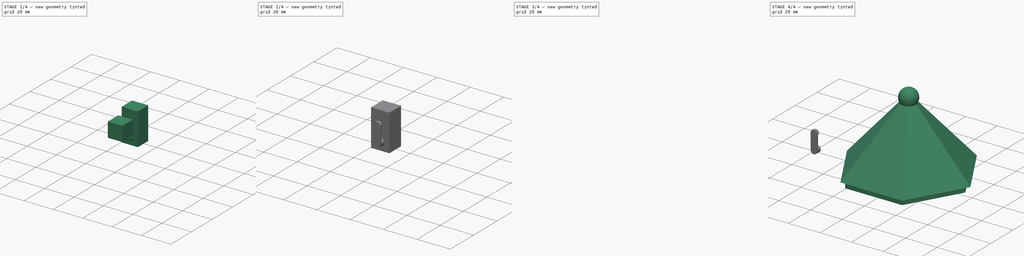
[diagram: build sequence overview — one tinted view per stage of 4, left to right]
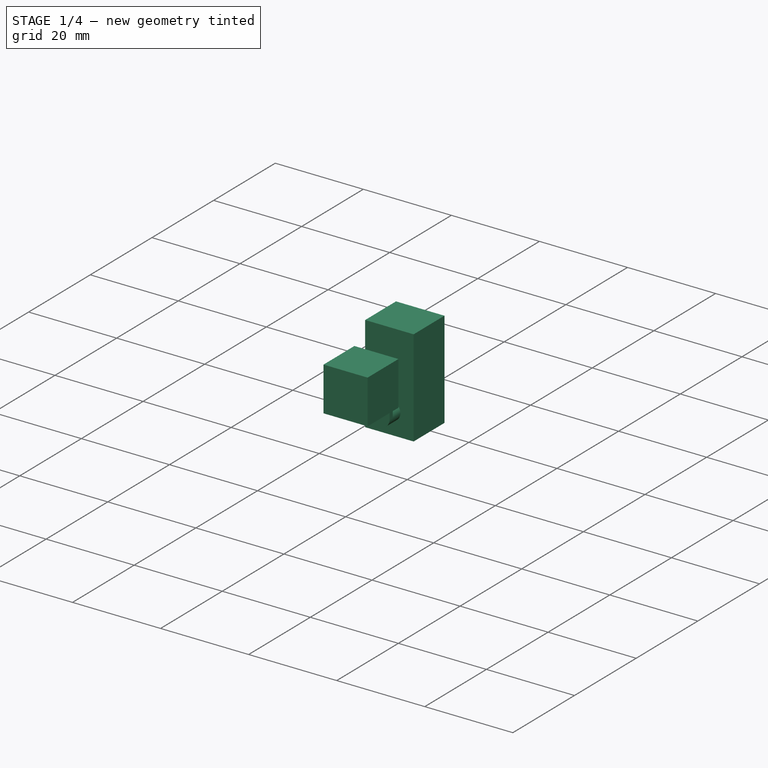
[diagram: stage 1 of 4 — iso view after this stage's code; geometry added in this stage tinted green]
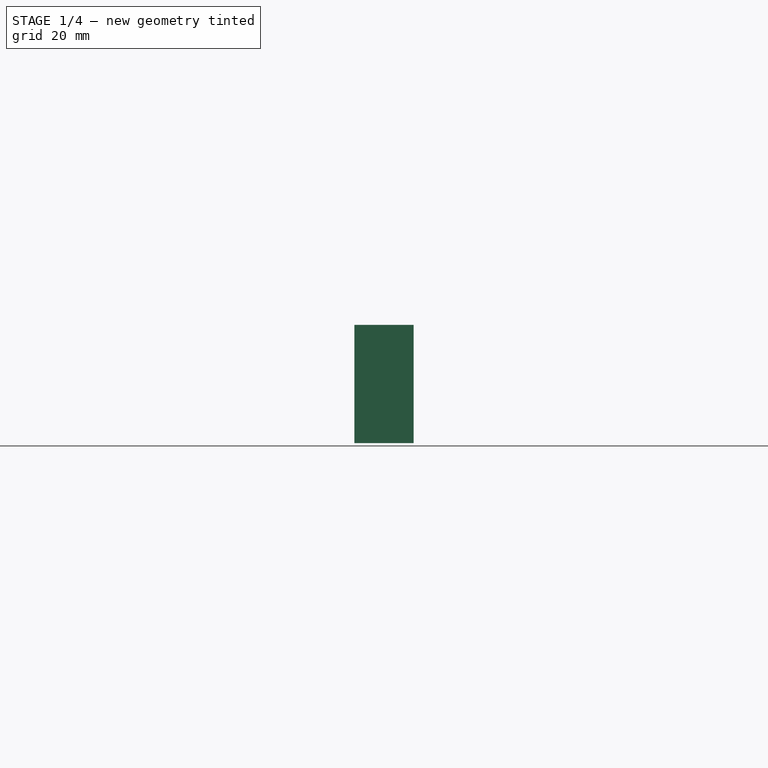
[diagram: stage 1 of 4 — front view after this stage's code; geometry added in this stage tinted green]
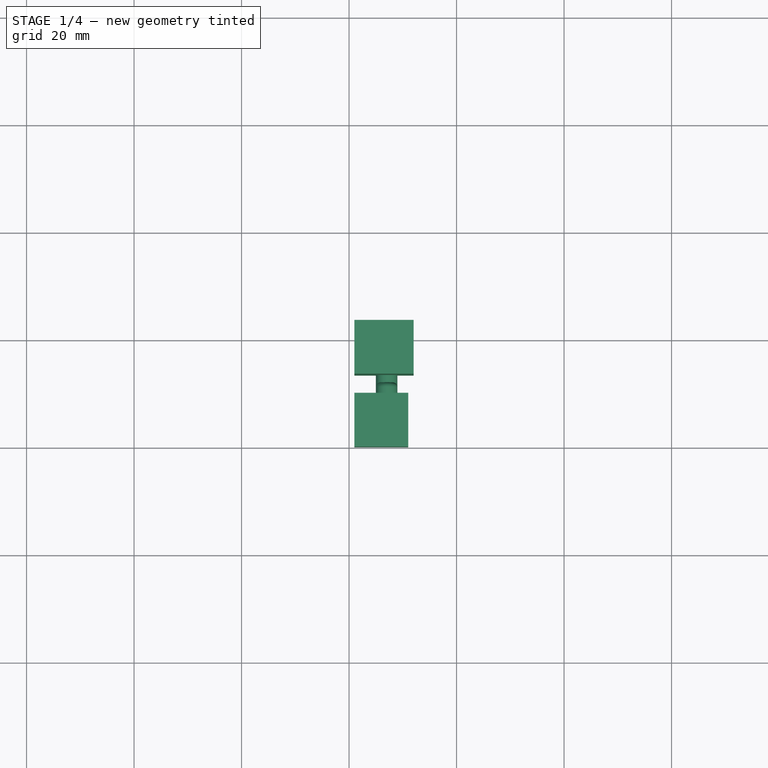
[diagram: stage 1 of 4 — top view after this stage's code; geometry added in this stage tinted green]
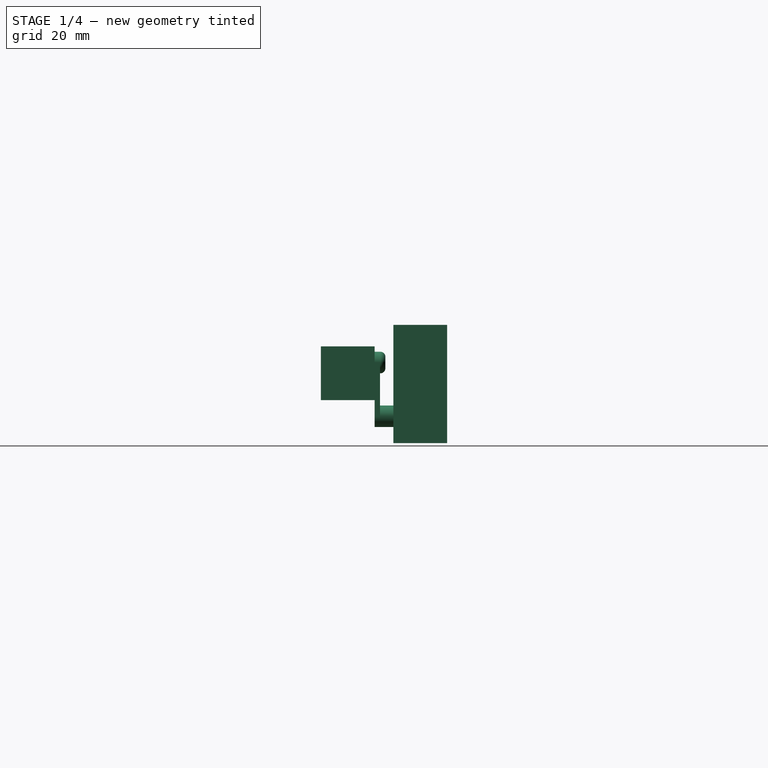
[diagram: stage 1 of 4 — right view after this stage's code; geometry added in this stage tinted green]
FCSTD DOCUMENT  (FreeCAD 0.16R6704 (Git))
Label: techo reparado exagono soportes
License: All rights reserved
LicenseURL: http://en.wikipedia.org/wiki/All_rights_reserved
objects: Part::Feature×18, Part::MultiFuse×3, Part::RegularPolygon×2, Part::Sphere×2, Part::Box×2, Part::Cut×2, Part::Loft×1, Part::Cylinder×1, Sketcher::SketchObject×1, PartDesign::Pad×1, Part::Thickness×1, PartDesign::Fillet×1
note: 36 computed .brp shape members not serialized (recipe doc carries the construction recipe); baked Part::Feature solids carry a one-line shape summary decoded from their .brp

FEATURE [Part::Box] Box001  label="Cubo001"
  Height = 10
  Length = 10
  Placement = pos=(-59,-20,3) rot=(0,0,1;0rad)
  Width = 10
FEATURE [PartDesign::Fillet] Fillet
  Base = -> Fusion002001 [Edge16]
  Radius = 0.9
FEATURE [Part::Box] Box  label="Cubo"
  Height = 22
  Length = 11
  Placement = pos=(-59,-6.5,-5) rot=(0,0,1;0rad)
  Width = 10
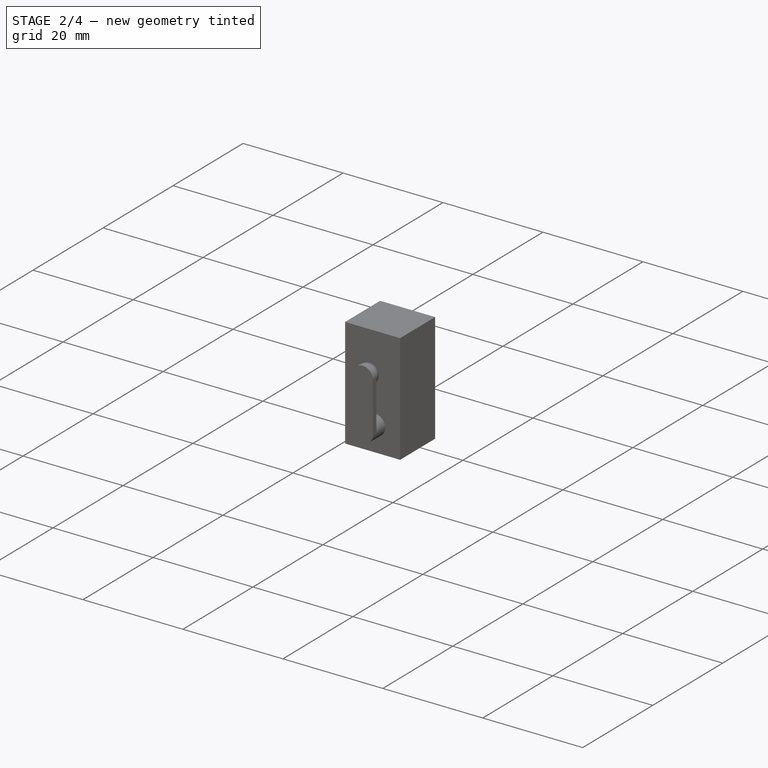
[diagram: stage 2 of 4 — iso view after this stage's code; geometry added in this stage tinted green]
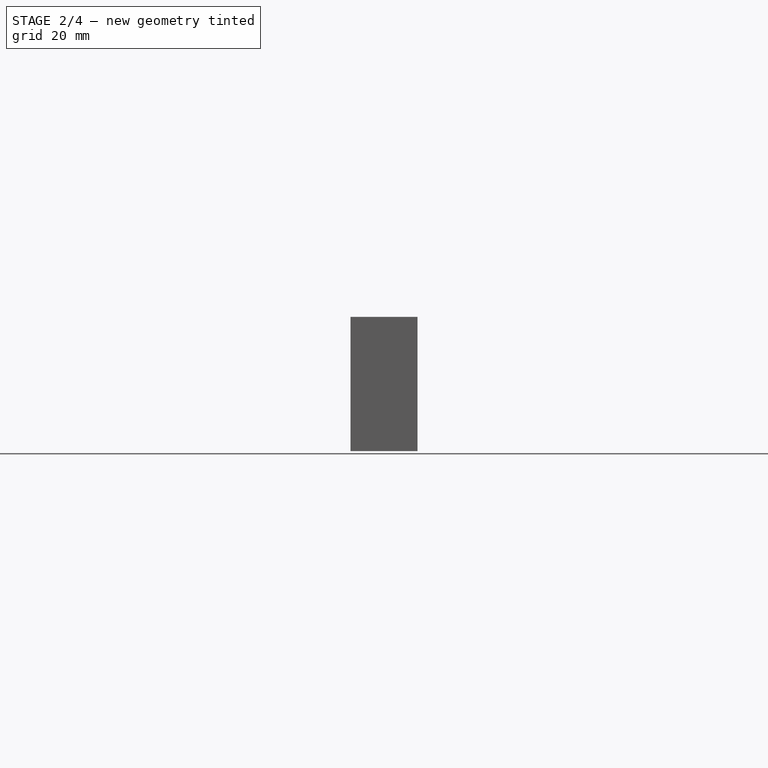
[diagram: stage 2 of 4 — front view after this stage's code; geometry added in this stage tinted green]
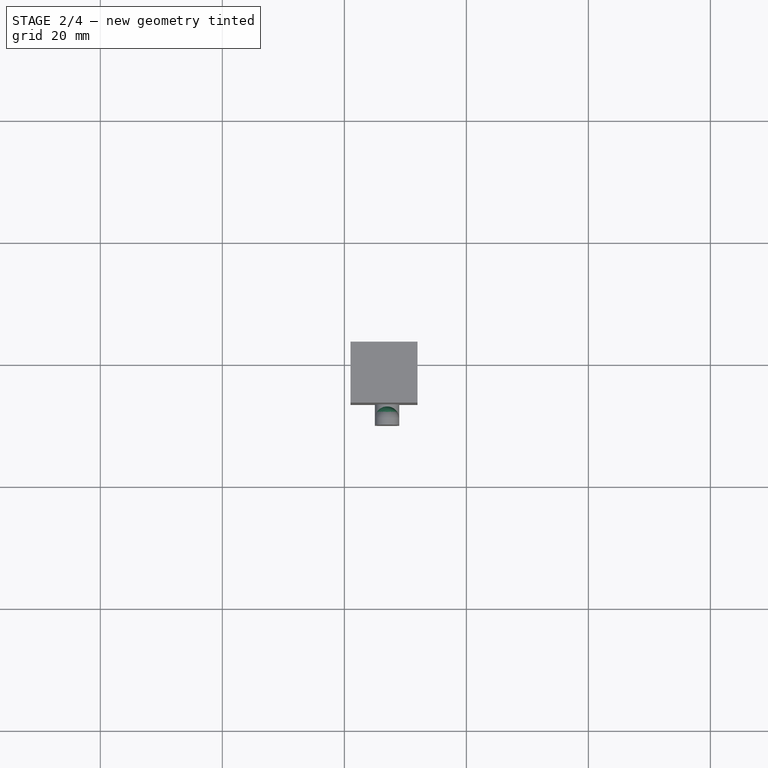
[diagram: stage 2 of 4 — top view after this stage's code; geometry added in this stage tinted green]
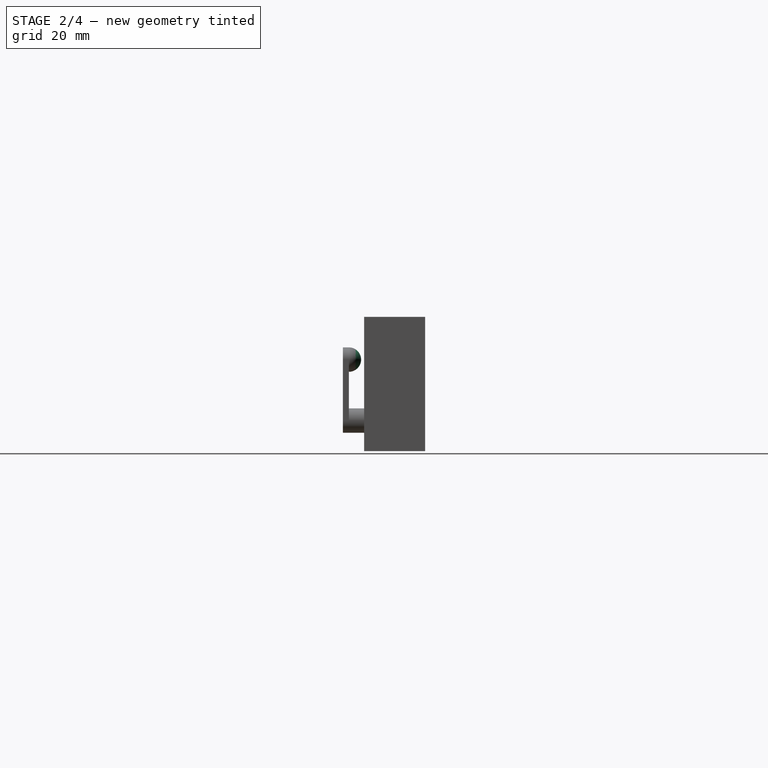
[diagram: stage 2 of 4 — right view after this stage's code; geometry added in this stage tinted green]
FEATURE [Part::Feature] Fusion002001  label="Fusion003"
  shape: bbox 4 x 4 x 14 mm, 8 faces (baked)
FEATURE [Part::Sphere] Sphere001  label="Esfera001"
  Angle1 = -90
  Angle2 = 90
  Angle3 = 360
  Placement = pos=(-53,-9,10) rot=(0,0,1;0rad)
  Radius = 2
FEATURE [Part::Cut] Cut001
  Base = -> Sphere001
  Tool = -> Box001
FEATURE [Part::MultiFuse] Fusion002002
  Shapes = -> [Cut001,Fillet]
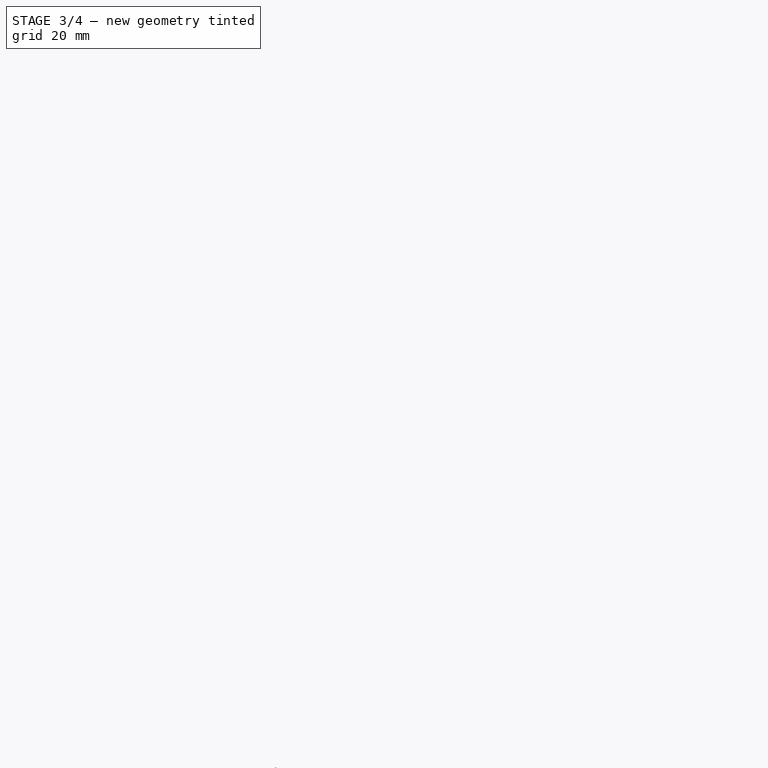
[diagram: stage 3 of 4 — iso view after this stage's code; geometry added in this stage tinted green]
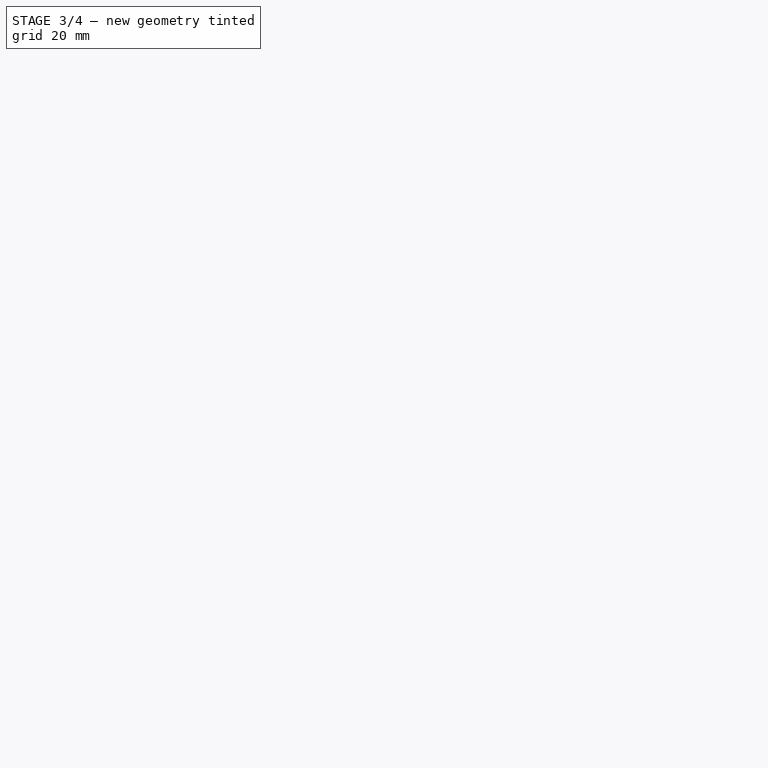
[diagram: stage 3 of 4 — front view after this stage's code; geometry added in this stage tinted green]
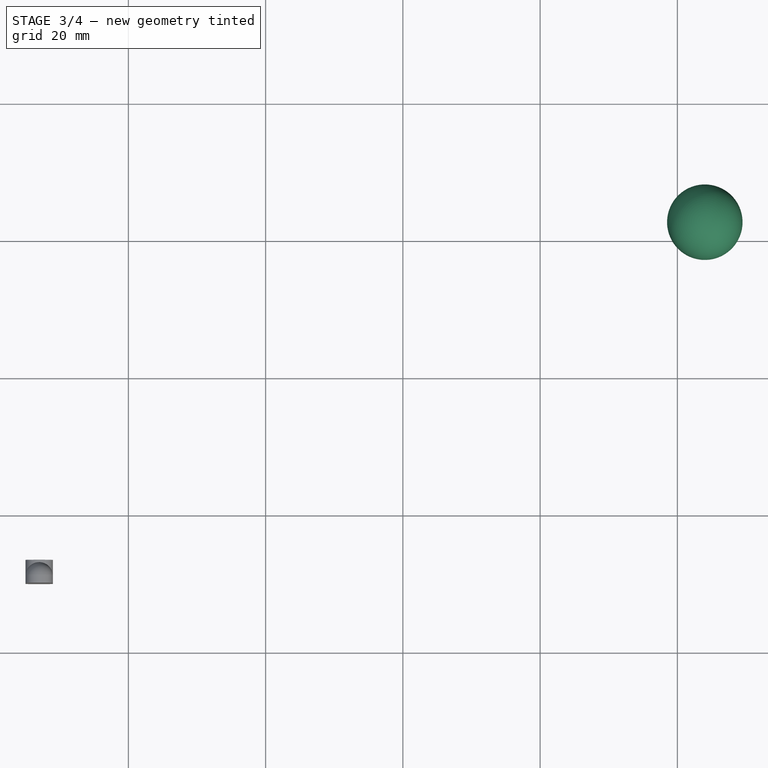
[diagram: stage 3 of 4 — top view after this stage's code; geometry added in this stage tinted green]
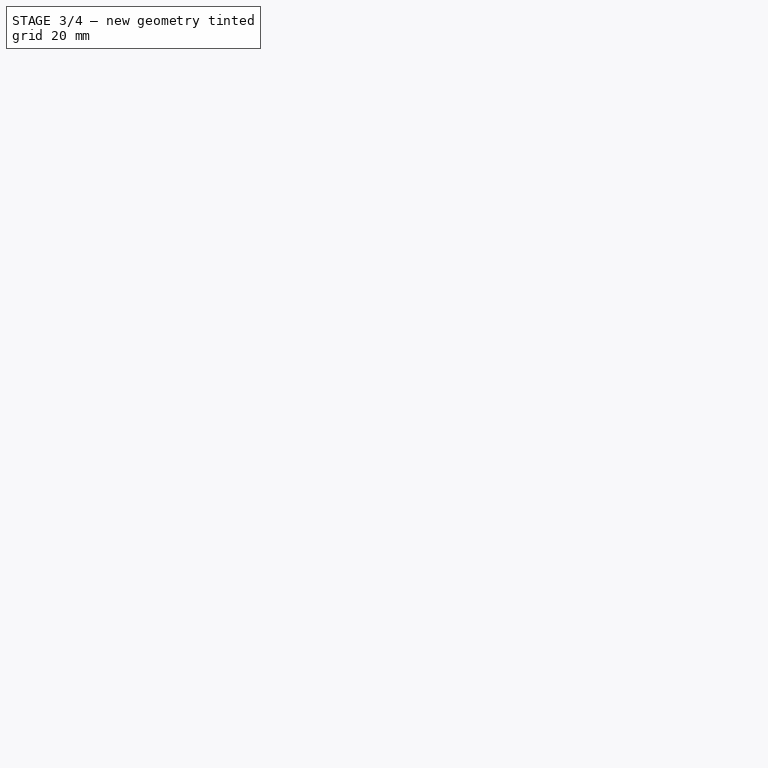
[diagram: stage 3 of 4 — right view after this stage's code; geometry added in this stage tinted green]
FEATURE [Part::RegularPolygon] RegularPolygon001  label="Polígono regular001"
  Circumradius = 39
  Placement = pos=(44,39,167) rot=(0,0,1;0rad)
  Polygon = 6
FEATURE [Part::RegularPolygon] RegularPolygon002  label="Polígono regular002"
  Circumradius = 5
  Placement = pos=(44,39,205) rot=(0,0,1;0rad)
  Polygon = 6
FEATURE [Part::Feature] Cut  label="Cut003"
  Placement = pos=(-0.942682,-0.269107,0) rot=(0,0,1;0rad)
  shape: bbox 88.93 x 79.01 x 11 mm, 641 faces (baked)
FEATURE [Part::Loft] Loft
  Closed = true
  Ruled = true
  Sections = -> [RegularPolygon001,RegularPolygon002]
  Solid = true
FEATURE [Part::Feature] Face
  shape: bbox 10 x 8.66 x 2e-07 mm, 1 faces, 0 solids (baked)
FEATURE [Part::Feature] Face001
  shape: bbox 78 x 67.55 x 2e-07 mm, 1 faces, 0 solids (baked)
FEATURE [Part::Feature] Shell
  Placement = pos=(0,0,5) rot=(0,0,1;0rad)
  shape: bbox 78 x 67.55 x 38 mm, 8 faces, 0 solids (baked)
FEATURE [Part::Sphere] Sphere  label="Esfera"
  Angle1 = -90
  Angle2 = 90
  Angle3 = 360
  Placement = pos=(44,39,213) rot=(0,0,1;0rad)
  Radius = 5.5
FEATURE [Part::Cylinder] Cylinder  label="Cilindro"
  Angle = 360
  Height = 10
  Placement = pos=(44,39,205) rot=(0,0,1;0rad)
  Radius = 3
FEATURE [Part::MultiFuse] Fusion
  Shapes = -> [Cylinder,Sphere]
FEATURE [Part::Cut] Cut002  label="Soporte"
  Base = -> Fusion002002
  Tool = -> Box
FEATURE [Part::Feature] Cut002001  label="Soporte001"
  Placement = pos=(44.9619,-26.9596,-1.81656) rot=(-0.999535,0.028861,-0.009873;0.659511rad)
  shape: bbox 4.362 x 10.14 x 13.21 mm, 9 faces (baked)
FEATURE [Part::Feature] Cut002001001  label="Soporte002"
  Placement = pos=(62.1878,-13.8839,15.0583) rot=(-0.862856,-0.478241,0.163602;0.754911rad)
  shape: bbox 7.675 x 9.715 x 12.66 mm, 9 faces (baked)
FEATURE [Part::Feature] Cut002001002  label="Soporte003"
  Placement = pos=(42.971,22.9939,-0.212923) rot=(-0.493465,-0.27659,0.824615;1.21841rad)
  shape: bbox 9.403 x 7.37 x 13.21 mm, 10 faces (baked)
FEATURE [Part::Feature] Cut002001003  label="Soporte004"
  Placement = pos=(59.4874,41.428,-6.77746) rot=(-0.560438,-0.183548,0.807601;1.18732rad)
  shape: bbox 8.677 x 8.502 x 13.13 mm, 10 faces (baked)
FEATURE [Part::Feature] Cut002001004  label="Soporte005"
  shape: bbox 4.33 x 3.5 x 14.16 mm, 10 faces (baked)
FEATURE [Part::Feature] Cut002001005  label="Soporte006"
  shape: bbox 4.33 x 3.5 x 14.16 mm, 10 faces (baked)
FEATURE [Part::Feature] Cut002001006  label="Soporte007"
  shape: bbox 4.33 x 3.5 x 14.16 mm, 10 faces (baked)
FEATURE [Part::Feature] Cut002001007  label="Soporte008"
  shape: bbox 4.33 x 3.5 x 14.16 mm, 10 faces (baked)
FEATURE [Part::Feature] Cut002001008  label="Soporte009"
  shape: bbox 4.33 x 3.5 x 14.16 mm, 10 faces (baked)
FEATURE [Part::Feature] Cut002001009  label="Soporte010"
  shape: bbox 4.33 x 3.5 x 14.16 mm, 10 faces (baked)
FEATURE [Part::Feature] Cut002001010  label="Soporte011"
  shape: bbox 4.33 x 3.5 x 14.16 mm, 10 faces (baked)
FEATURE [Part::Feature] Cut002001011  label="Soporte012"
  shape: bbox 4.33 x 3.5 x 14.16 mm, 10 faces (baked)
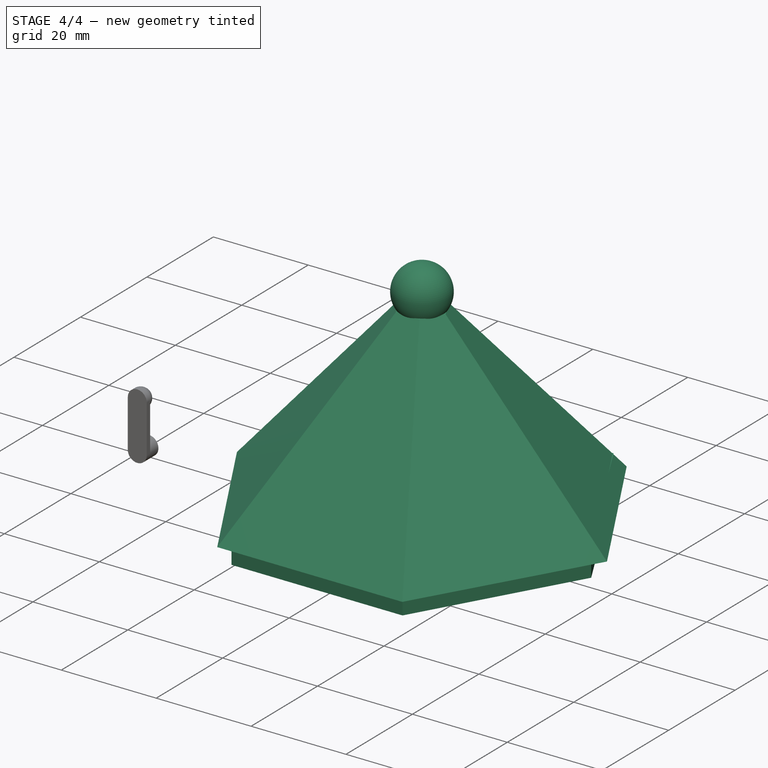
[diagram: stage 4 of 4 — iso view after this stage's code; geometry added in this stage tinted green]
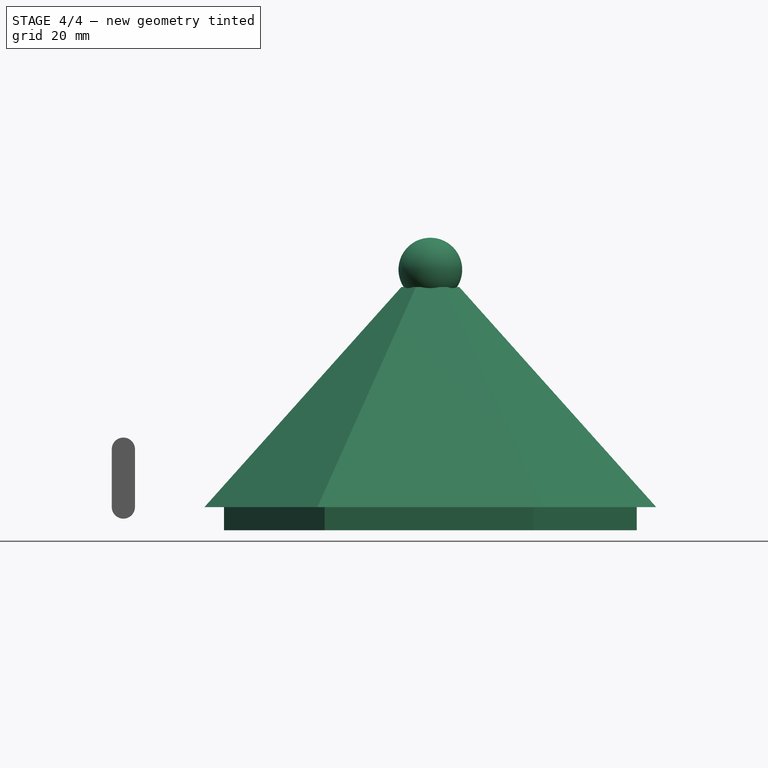
[diagram: stage 4 of 4 — front view after this stage's code; geometry added in this stage tinted green]
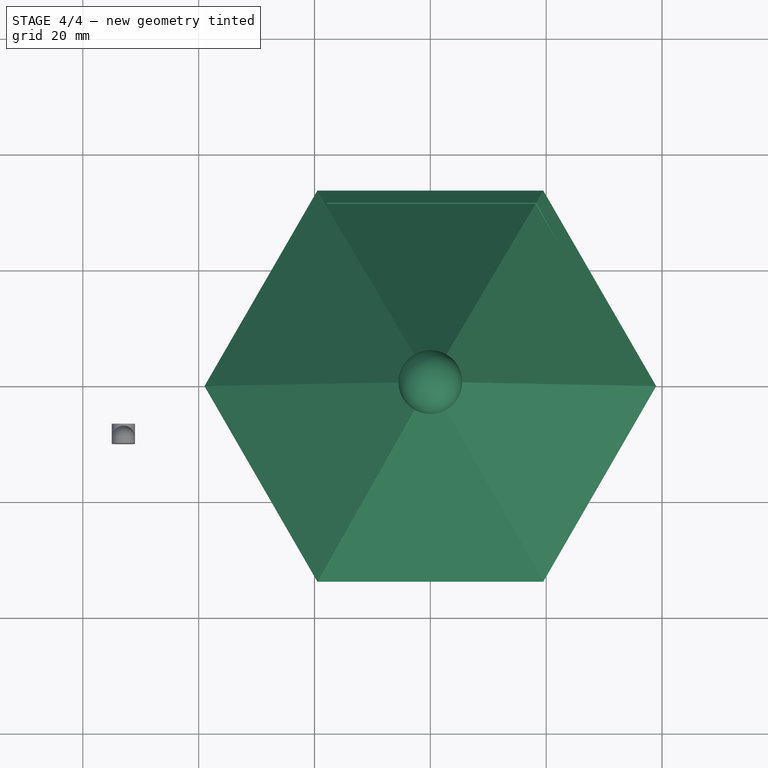
[diagram: stage 4 of 4 — top view after this stage's code; geometry added in this stage tinted green]
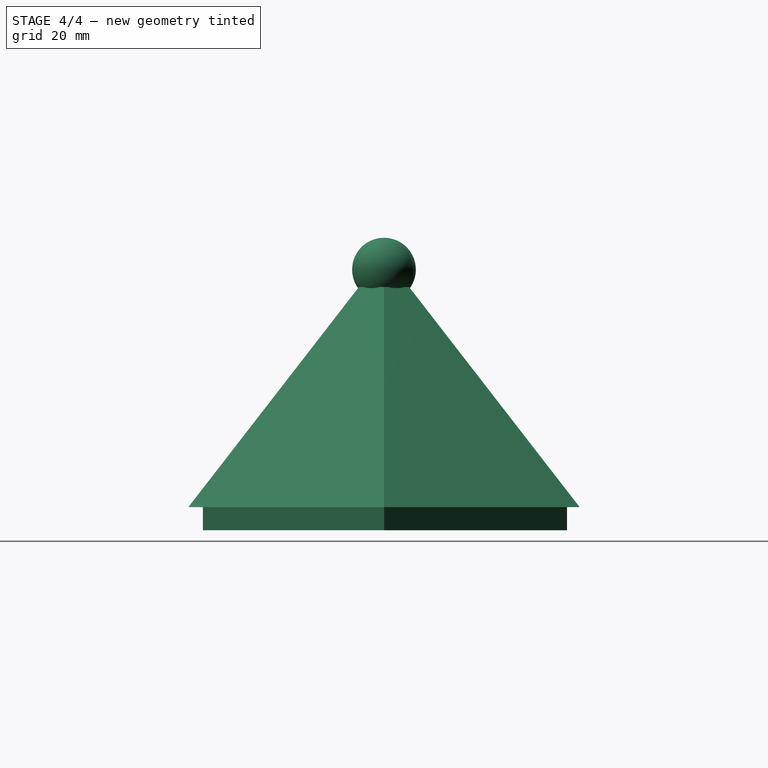
[diagram: stage 4 of 4 — right view after this stage's code; geometry added in this stage tinted green]
FEATURE [Part::Feature] Solid
  shape: bbox 78 x 67.55 x 38 mm, 8 faces (baked)
FEATURE [Part::MultiFuse] Fusion001
  Shapes = -> [Solid,Fusion]
FEATURE [Sketcher::SketchObject] Sketch
  Placement = pos=(0,0,172) rot=(1,0,0;3.14159rad)
  Support = -> Fusion001 [Face1]
  sketch-geometry (6):
    g0: LineSegment StartX=61.7849 StartY=-7.72586 StartZ=0 EndX=25.7467 EndY=-7.72586 EndZ=0
    g1: LineSegment StartX=25.7467 StartY=-7.72586 StartZ=0 EndX=8.36928 EndY=-39.2977 EndZ=0
    g2: LineSegment StartX=8.36928 StartY=-39.2977 StartZ=0 EndX=26.2302 EndY=-70.5985 EndZ=0
    g3: LineSegment StartX=26.2302 StartY=-70.5985 StartZ=0 EndX=62.2684 EndY=-70.5985 EndZ=0
    g4: LineSegment StartX=62.2684 StartY=-70.5985 StartZ=0 EndX=79.6458 EndY=-39.0267 EndZ=0
    g5: LineSegment StartX=79.6458 StartY=-39.0267 StartZ=0 EndX=61.7849 EndY=-7.72586 EndZ=0
  constraints (9):
    c: Coincident(g0,g1)
    c: Coincident(g1,g2)
    c: Coincident(g2,g3)
    c: Coincident(g3,g4)
    c: Coincident(g4,g5)
    c: Coincident(g5,g0)
    c: Equal(g0, g1-g5) x5
    c: Horizontal(g0)
    c: Horizontal(g3)
FEATURE [PartDesign::Pad] Pad
  Length = 4
  Length2 = 100
  Sketch = -> Sketch
  Type = 0
FEATURE [Part::Thickness] Thickness
  Faces = -> Pad [Face1]
  Intersection = false
  Join = 0
  Mode = 0
  Placement = pos=(-44,-39,-172) rot=(0,0,1;0rad)
  SelfIntersection = false
  Value = -3
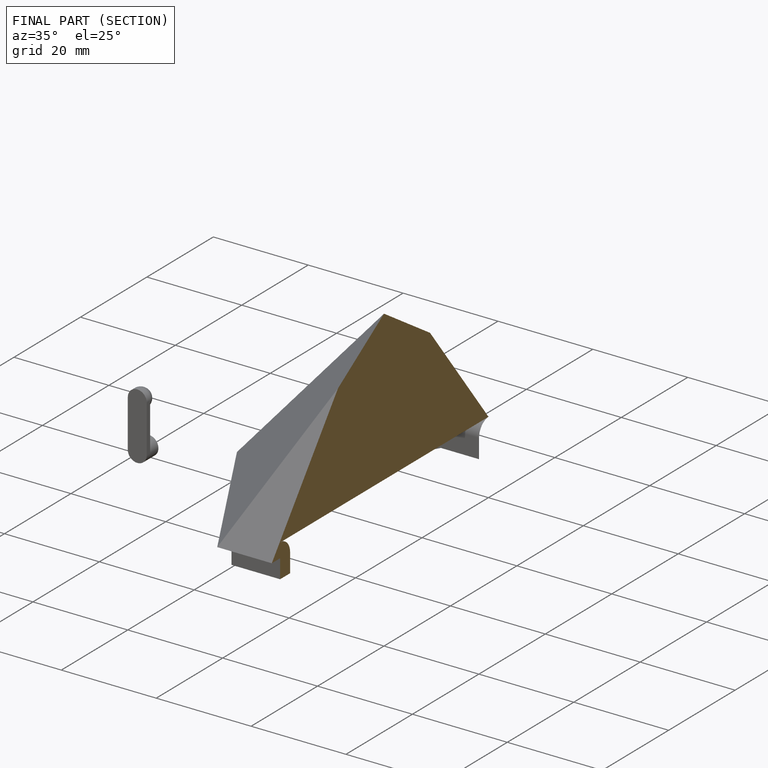
[diagram: finished part — half-section view (interior)]
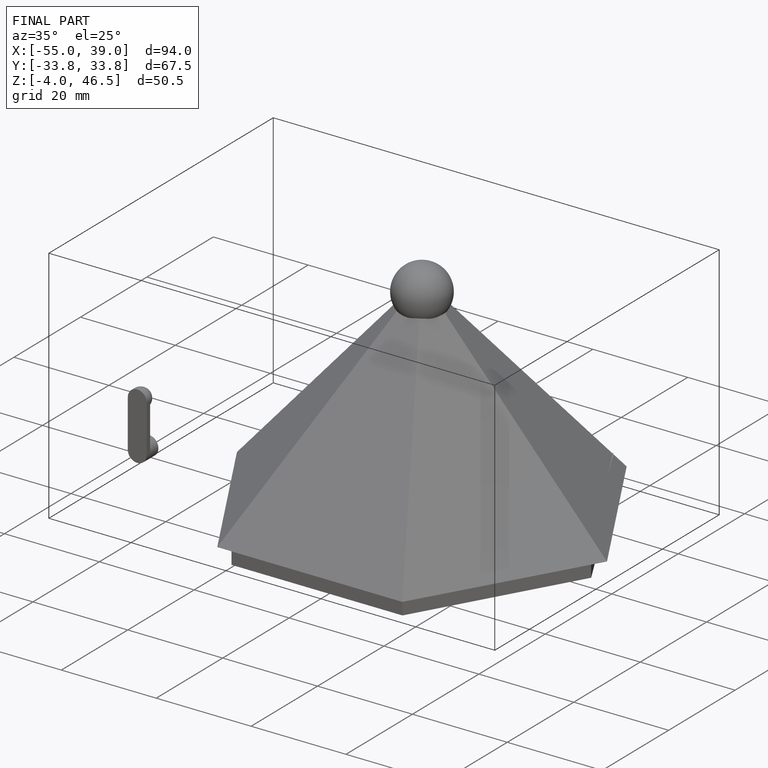
[diagram: finished part — iso view with bounding-box wireframe]
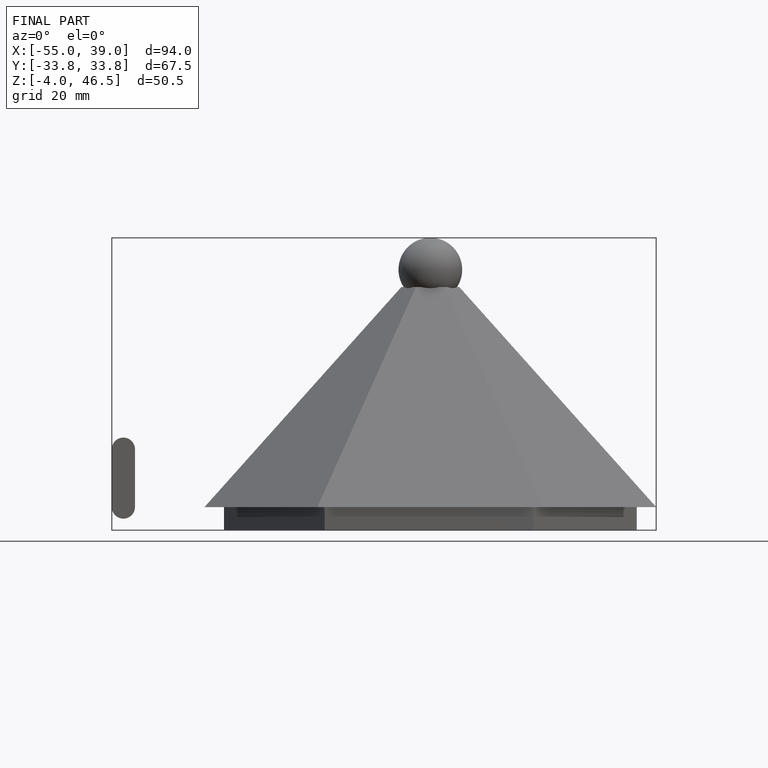
[diagram: finished part — front view with bounding-box wireframe]
